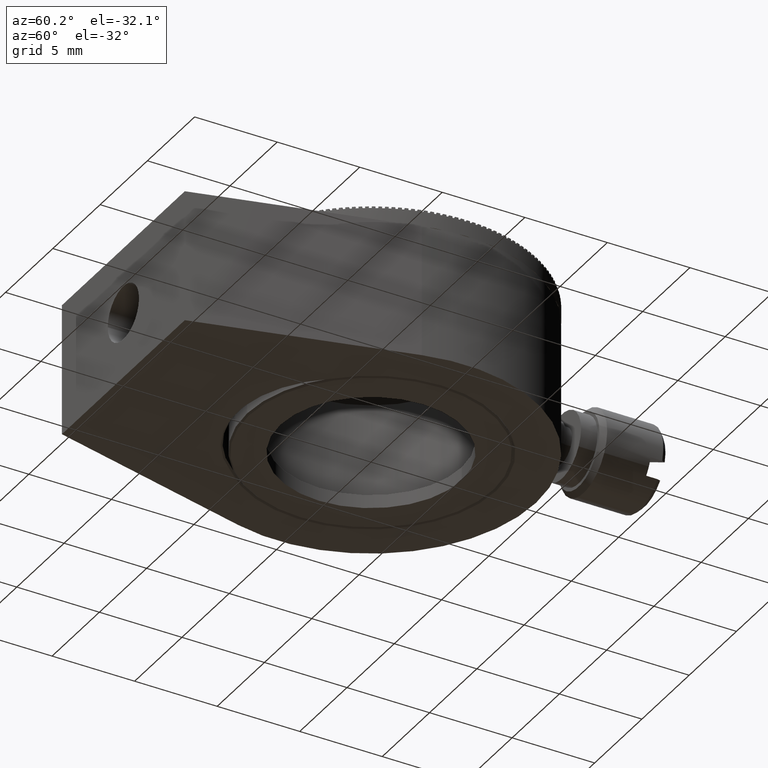
[diagram: clean part render]
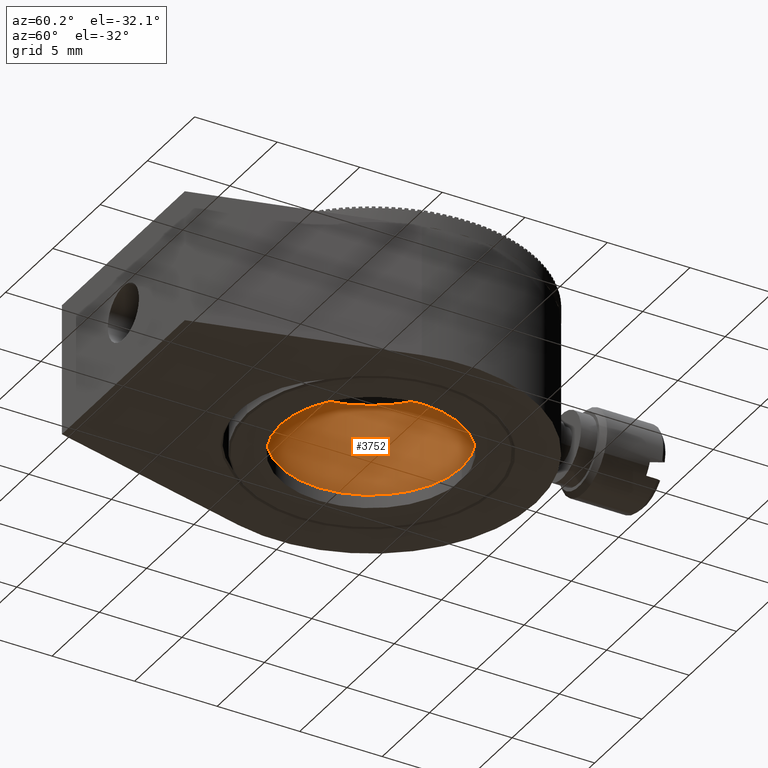
[diagram: same view with one face highlighted and labeled with its STEP entity id]
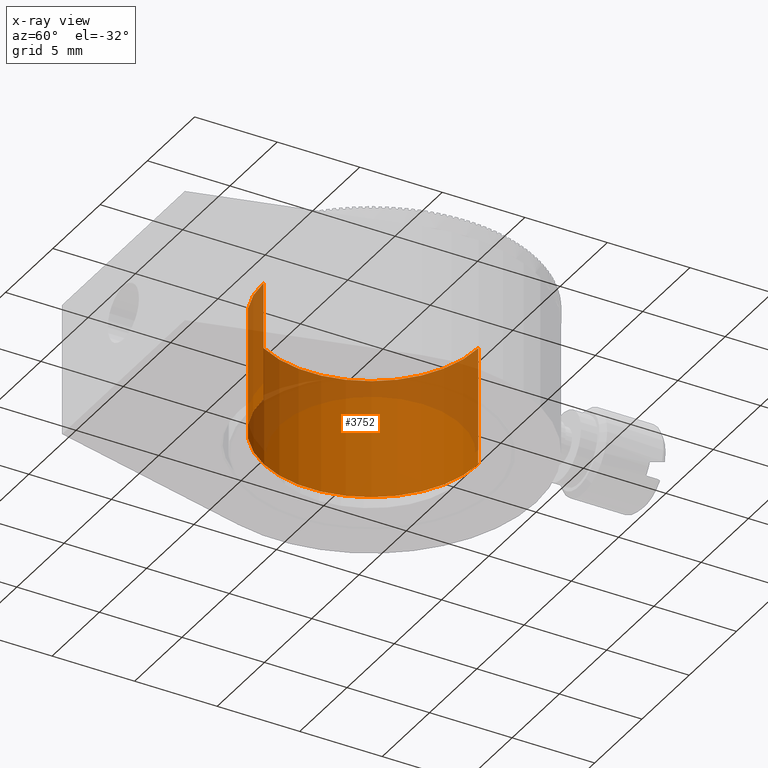
[diagram: x-ray of the same camera — body ghosted, the highlighted face saturated]
A machine part, auxiliary view. The second image highlights one B-rep face of the part: STEP entity #3752.
The next image is the same camera in x-ray: the body ghosted, the highlighted face saturated — about 38% of this face is hidden behind the body in this view.
In plain terms, the highlighted cylindrical surface (partial cylindrical patch) has radius 6.5 mm, axis along (-0, -0, 1).
Its self-contained STEP definition (entity closure, byte-faithful):
#387 = CIRCLE ( 'NONE', #54279, 6.500000000000033751 ) ;
#870 = ORIENTED_EDGE ( 'NONE', *, *, #53544, .T. ) ;
#896 = CARTESIAN_POINT ( 'NONE',  ( 1.216381447997830940E-14, 6.500000000000000888, 1.300000000000000711 ) ) ;
#3752 = ADVANCED_FACE ( 'NONE', ( #32627 ), #38043, .F. ) ;
#3856 = CIRCLE ( 'NONE', #27257, 6.500000000000033751 ) ;
#10753 = DIRECTION ( 'NONE',  ( -1.665334536937733627E-15, -1.000000000000000000, 0.000000000000000000 ) ) ;
#13199 = CARTESIAN_POINT ( 'NONE',  ( 1.216381447997828100E-14, 6.500000000000000888, 8.499999999999998224 ) ) ;
#13817 = VERTEX_POINT ( 'NONE', #13199 ) ;
#15841 = DIRECTION ( 'NONE',  ( 7.347880794884131569E-16, 7.667831074058618192E-31, -1.000000000000000000 ) ) ;
#16585 = VECTOR ( 'NONE', #33192, 1000.000000000000000 ) ;
#17353 = CARTESIAN_POINT ( 'NONE',  ( 1.765249563720418662E-14, 2.003880777340356816E-29, -18.38477631085023134 ) ) ;
#17928 = EDGE_CURVE ( 'NONE', #54486, #54466, #34138, .T. ) ;
#18550 = CARTESIAN_POINT ( 'NONE',  ( 6.827821147108862226E-15, -6.500000000000033751, -18.38477631085023134 ) ) ;
#25081 = CARTESIAN_POINT ( 'NONE',  ( 3.188356656595553829E-15, 4.944853825180547976E-30, 1.300000000000000711 ) ) ;
#26138 = ORIENTED_EDGE ( 'NONE', *, *, #38616, .T. ) ;
#27257 = AXIS2_PLACEMENT_3D ( 'NONE', #40272, #34882, #59402 ) ;
#29424 = DIRECTION ( 'NONE',  ( -7.347880794884131569E-16, -7.667831074058618192E-31, 1.000000000000000000 ) ) ;
#32627 = FACE_OUTER_BOUND ( 'NONE', #36014, .T. ) ;
#33192 = DIRECTION ( 'NONE',  ( -7.347880794884131569E-16, -7.667831074058618192E-31, 1.000000000000000000 ) ) ;
#34138 = LINE ( 'NONE', #18550, #16585 ) ;
#34814 = CARTESIAN_POINT ( 'NONE',  ( -1.292679200581633772E-14, -6.500000000000033751, 8.499999999999998224 ) ) ;
#34882 = DIRECTION ( 'NONE',  ( -7.347880794884131569E-16, -7.667831074058618192E-31, 1.000000000000000000 ) ) ;
#35121 = CARTESIAN_POINT ( 'NONE',  ( -7.636317833499773322E-15, -6.500000000000033751, 1.300000000000000711 ) ) ;
#36014 = EDGE_LOOP ( 'NONE', ( #62771, #870, #26138, #57185 ) ) ;
#38043 = CYLINDRICAL_SURFACE ( 'NONE', #43951, 6.500000000000033751 ) ;
#38616 = EDGE_CURVE ( 'NONE', #13817, #54466, #3856, .T. ) ;
#39137 = LINE ( 'NONE', #53474, #48966 ) ;
#40272 = CARTESIAN_POINT ( 'NONE',  ( -2.102117515721011356E-15, -5.759845481416520426E-31, 8.499999999999998224 ) ) ;
#41914 = VERTEX_POINT ( 'NONE', #896 ) ;
#43951 = AXIS2_PLACEMENT_3D ( 'NONE', #17353, #29424, #53929 ) ;
#48966 = VECTOR ( 'NONE', #58563, 1000.000000000000000 ) ;
#52592 = EDGE_CURVE ( 'NONE', #54486, #41914, #387, .T. ) ;
#53474 = CARTESIAN_POINT ( 'NONE',  ( 2.927319054674529815E-14, 6.500000000000033751, -18.38477631085023134 ) ) ;
#53544 = EDGE_CURVE ( 'NONE', #41914, #13817, #39137, .T. ) ;
#53929 = DIRECTION ( 'NONE',  ( -1.665334536937733627E-15, -1.000000000000000000, 0.000000000000000000 ) ) ;
#54279 = AXIS2_PLACEMENT_3D ( 'NONE', #25081, #15841, #10753 ) ;
#54466 = VERTEX_POINT ( 'NONE', #34814 ) ;
#54486 = VERTEX_POINT ( 'NONE', #35121 ) ;
#57185 = ORIENTED_EDGE ( 'NONE', *, *, #17928, .F. ) ;
#58563 = DIRECTION ( 'NONE',  ( -7.347880794884131569E-16, -7.667831074058618192E-31, 1.000000000000000000 ) ) ;
#59402 = DIRECTION ( 'NONE',  ( -1.665334536937733627E-15, -1.000000000000000000, 0.000000000000000000 ) ) ;
#62771 = ORIENTED_EDGE ( 'NONE', *, *, #52592, .T. ) ;